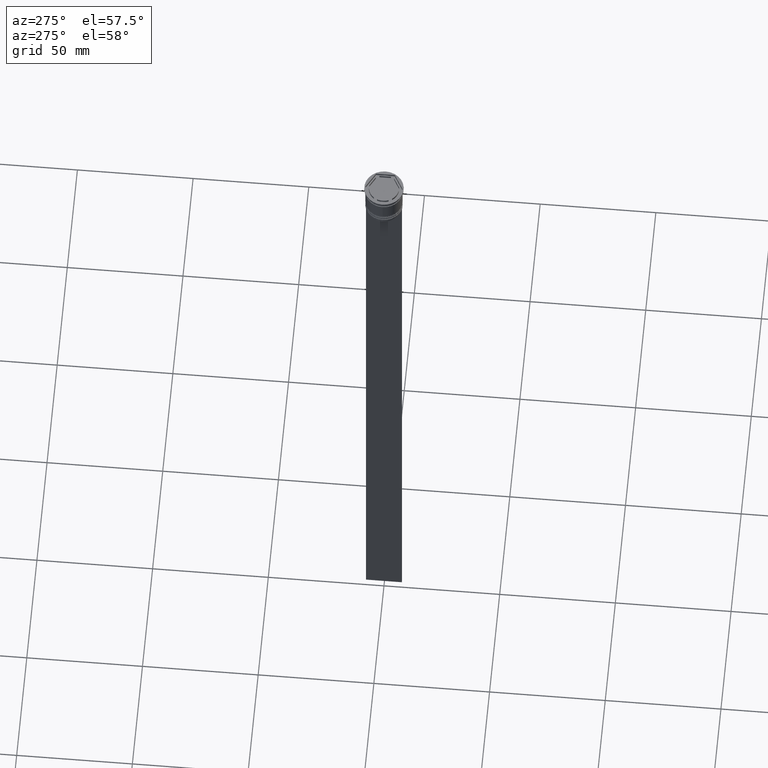
[diagram: clean part render]
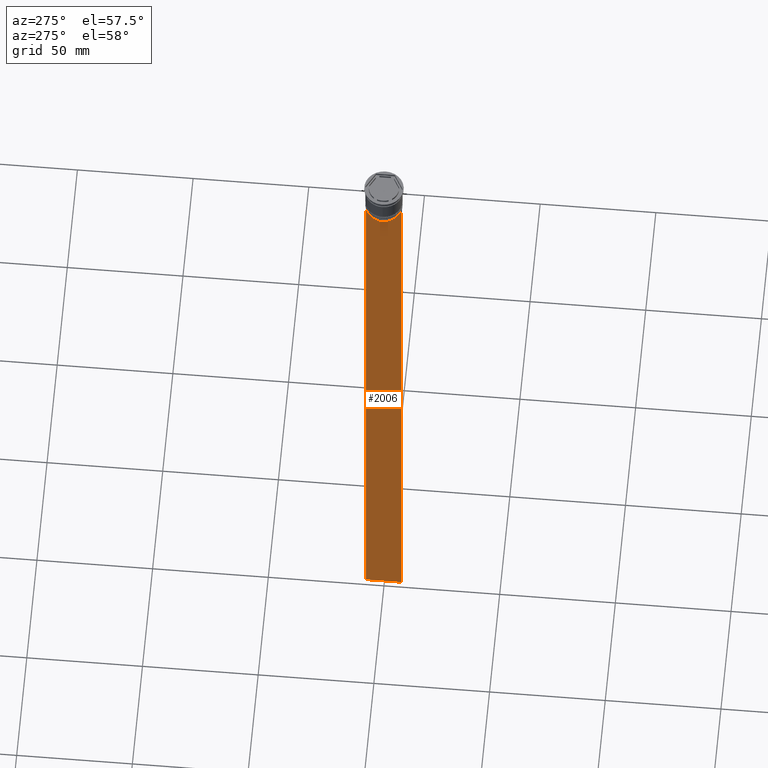
[diagram: same view with one face highlighted and labeled with its STEP entity id]
A machine part, auxiliary view. The second image highlights one B-rep face of the part: STEP entity #2006.
In plain terms, the highlighted planar face has unit normal (-1, 0, 0).
Its self-contained STEP definition (entity closure, byte-faithful):
#19 = DIRECTION ( 'NONE',  ( 0.000000000000000000, -1.000000000000000000, 0.000000000000000000 ) ) ;
#57 = ORIENTED_EDGE ( 'NONE', *, *, #2250, .F. ) ;
#104 = CARTESIAN_POINT ( 'NONE',  ( -0.4999999999999998890, -6.380438856379708312, -14.50000000000000000 ) ) ;
#106 = EDGE_LOOP ( 'NONE', ( #157, #664, #1202, #624, #2163, #57, #1738, #1619, #1998, #1241 ) ) ;
#157 = ORIENTED_EDGE ( 'NONE', *, *, #1660, .F. ) ;
#202 = CARTESIAN_POINT ( 'NONE',  ( -0.4999999999999998890, 6.714736947114692711, -14.16668390704818847 ) ) ;
#258 = CARTESIAN_POINT ( 'NONE',  ( -0.4999999999999998890, -7.749999999999999112, -14.00000000000000178 ) ) ;
#261 = CARTESIAN_POINT ( 'NONE',  ( -0.4999999999999998890, 6.380438856379708312, 0.000000000000000000 ) ) ;
#279 = CARTESIAN_POINT ( 'NONE',  ( -0.4999999999999998890, -6.714736947305992132, -14.16668390685738999 ) ) ;
#328 = CARTESIAN_POINT ( 'NONE',  ( -0.4999999999999998890, 7.750000000000002665, 1.532224567009066840 ) ) ;
#348 = VERTEX_POINT ( 'NONE', #2304 ) ;
#457 = CARTESIAN_POINT ( 'NONE',  ( -0.4999999999999998890, -6.547597841511246131, -14.33335192438652328 ) ) ;
#520 = EDGE_CURVE ( 'NONE', #932, #1567, #1921, .T. ) ;
#570 = VECTOR ( 'NONE', #1936, 1000.000000000000000 ) ;
#600 = EDGE_CURVE ( 'NONE', #1169, #1170, #1060, .T. ) ;
#622 = CARTESIAN_POINT ( 'NONE',  ( -0.4999999999999998890, 6.380438856379708312, -14.50000000000000000 ) ) ;
#624 = ORIENTED_EDGE ( 'NONE', *, *, #600, .F. ) ;
#651 = CARTESIAN_POINT ( 'NONE',  ( -0.4999999999999998890, -7.749999999999999112, -14.00000000000000178 ) ) ;
#654 = DIRECTION ( 'NONE',  ( 0.000000000000000000, 0.000000000000000000, -1.000000000000000000 ) ) ;
#664 = ORIENTED_EDGE ( 'NONE', *, *, #1783, .F. ) ;
#724 = CARTESIAN_POINT ( 'NONE',  ( -0.4999999999999998890, -6.380438856379708312, -17.00000000000000000 ) ) ;
#745 = DIRECTION ( 'NONE',  ( -0.000000000000000000, -0.000000000000000000, 1.000000000000000000 ) ) ;
#763 = VECTOR ( 'NONE', #862, 1000.000000000000000 ) ;
#820 = CARTESIAN_POINT ( 'NONE',  ( -0.4999999999999998890, -6.881860213634098500, -14.00000000000000178 ) ) ;
#862 = DIRECTION ( 'NONE',  ( 0.000000000000000000, 1.000000000000000000, 0.000000000000000000 ) ) ;
#879 = VERTEX_POINT ( 'NONE', #2333 ) ;
#932 = VERTEX_POINT ( 'NONE', #622 ) ;
#988 = DIRECTION ( 'NONE',  ( 0.000000000000000000, 0.000000000000000000, 1.000000000000000000 ) ) ;
#999 = DIRECTION ( 'NONE',  ( 0.000000000000000000, 0.000000000000000000, -1.000000000000000000 ) ) ;
#1060 = LINE ( 'NONE', #1966, #763 ) ;
#1096 = FACE_OUTER_BOUND ( 'NONE', #106, .T. ) ;
#1102 = B_SPLINE_CURVE_WITH_KNOTS ( 'NONE', 3,
 ( #2234, #202, #1131, #1691 ),
 .UNSPECIFIED., .F., .F.,
 ( 4, 4 ),
 ( 0.01172465562756038263, 0.01243276816391822651 ),
 .UNSPECIFIED. ) ;
#1107 = CARTESIAN_POINT ( 'NONE',  ( -0.4999999999999998890, 6.380438856379708312, -17.00000000000000000 ) ) ;
#1131 = CARTESIAN_POINT ( 'NONE',  ( -0.4999999999999998890, 6.547597841304911626, -14.33335192459222718 ) ) ;
#1133 = DIRECTION ( 'NONE',  ( -1.000000000000000000, 0.000000000000000000, 0.000000000000000000 ) ) ;
#1169 = VERTEX_POINT ( 'NONE', #1553 ) ;
#1170 = VERTEX_POINT ( 'NONE', #2292 ) ;
#1173 = CARTESIAN_POINT ( 'NONE',  ( -0.4999999999999998890, -7.749999999999999112, -14.00000000000000178 ) ) ;
#1202 = ORIENTED_EDGE ( 'NONE', *, *, #1444, .T. ) ;
#1205 = VERTEX_POINT ( 'NONE', #1173 ) ;
#1209 = LINE ( 'NONE', #258, #1569 ) ;
#1211 = DIRECTION ( 'NONE',  ( 0.000000000000000000, 0.000000000000000000, -1.000000000000000000 ) ) ;
#1221 = EDGE_CURVE ( 'NONE', #1205, #1169, #2096, .T. ) ;
#1241 = ORIENTED_EDGE ( 'NONE', *, *, #520, .F. ) ;
#1272 = LINE ( 'NONE', #2370, #2155 ) ;
#1286 = VECTOR ( 'NONE', #654, 1000.000000000000000 ) ;
#1346 = LINE ( 'NONE', #1863, #2358 ) ;
#1397 = EDGE_CURVE ( 'NONE', #1445, #2252, #1851, .T. ) ;
#1444 = EDGE_CURVE ( 'NONE', #879, #1170, #2334, .T. ) ;
#1445 = VERTEX_POINT ( 'NONE', #2301 ) ;
#1524 = AXIS2_PLACEMENT_3D ( 'NONE', #1716, #1133, #988 ) ;
#1553 = CARTESIAN_POINT ( 'NONE',  ( -0.4999999999999998890, -7.749999999999999112, -314.0000000000000000 ) ) ;
#1567 = VERTEX_POINT ( 'NONE', #1107 ) ;
#1569 = VECTOR ( 'NONE', #1775, 1000.000000000000000 ) ;
#1619 = ORIENTED_EDGE ( 'NONE', *, *, #1871, .F. ) ;
#1660 = EDGE_CURVE ( 'NONE', #348, #932, #1102, .T. ) ;
#1691 = CARTESIAN_POINT ( 'NONE',  ( -0.4999999999999998890, 6.380438856379708312, -14.50000000000000000 ) ) ;
#1716 = CARTESIAN_POINT ( 'NONE',  ( -0.4999999999999998890, -7.749999999999999112, 1.532224567009066840 ) ) ;
#1737 = VECTOR ( 'NONE', #1211, 1000.000000000000000 ) ;
#1738 = ORIENTED_EDGE ( 'NONE', *, *, #1397, .F. ) ;
#1775 = DIRECTION ( 'NONE',  ( 0.000000000000000000, -1.000000000000000000, 0.000000000000000000 ) ) ;
#1779 = CARTESIAN_POINT ( 'NONE',  ( -0.4999999999999998890, -6.881860213634098500, -14.00000000000000178 ) ) ;
#1783 = EDGE_CURVE ( 'NONE', #879, #348, #1209, .T. ) ;
#1835 = PLANE ( 'NONE',  #1524 ) ;
#1851 = B_SPLINE_CURVE_WITH_KNOTS ( 'NONE', 3,
 ( #104, #457, #279, #1779 ),
 .UNSPECIFIED., .F., .F.,
 ( 4, 4 ),
 ( 0.02996184199614749730, 0.03067452609193703841 ),
 .UNSPECIFIED. ) ;
#1863 = CARTESIAN_POINT ( 'NONE',  ( -0.4999999999999998890, 6.399999999999999467, -17.00000000000000000 ) ) ;
#1871 = EDGE_CURVE ( 'NONE', #2337, #1445, #1272, .T. ) ;
#1915 = CARTESIAN_POINT ( 'NONE',  ( -0.4999999999999998890, -7.749999999999999112, 1.532224567009066840 ) ) ;
#1921 = LINE ( 'NONE', #261, #1737 ) ;
#1936 = DIRECTION ( 'NONE',  ( 0.000000000000000000, -1.000000000000000000, 0.000000000000000000 ) ) ;
#1945 = VECTOR ( 'NONE', #999, 1000.000000000000000 ) ;
#1966 = CARTESIAN_POINT ( 'NONE',  ( -0.4999999999999998890, -7.749999999999999112, -314.0000000000000000 ) ) ;
#1998 = ORIENTED_EDGE ( 'NONE', *, *, #2058, .F. ) ;
#2006 = ADVANCED_FACE ( 'NONE', ( #1096 ), #1835, .T. ) ;
#2058 = EDGE_CURVE ( 'NONE', #1567, #2337, #1346, .T. ) ;
#2096 = LINE ( 'NONE', #1915, #1945 ) ;
#2155 = VECTOR ( 'NONE', #745, 1000.000000000000000 ) ;
#2163 = ORIENTED_EDGE ( 'NONE', *, *, #1221, .F. ) ;
#2234 = CARTESIAN_POINT ( 'NONE',  ( -0.4999999999999998890, 6.881860213634098500, -14.00000000000000178 ) ) ;
#2250 = EDGE_CURVE ( 'NONE', #2252, #1205, #2315, .T. ) ;
#2252 = VERTEX_POINT ( 'NONE', #820 ) ;
#2292 = CARTESIAN_POINT ( 'NONE',  ( -0.4999999999999998890, 7.750000000000002665, -314.0000000000000000 ) ) ;
#2301 = CARTESIAN_POINT ( 'NONE',  ( -0.4999999999999998890, -6.380438856379708312, -14.50000000000000000 ) ) ;
#2304 = CARTESIAN_POINT ( 'NONE',  ( -0.4999999999999998890, 6.881860213634098500, -14.00000000000000178 ) ) ;
#2315 = LINE ( 'NONE', #651, #570 ) ;
#2333 = CARTESIAN_POINT ( 'NONE',  ( -0.4999999999999998890, 7.750000000000002665, -14.00000000000000178 ) ) ;
#2334 = LINE ( 'NONE', #328, #1286 ) ;
#2337 = VERTEX_POINT ( 'NONE', #724 ) ;
#2358 = VECTOR ( 'NONE', #19, 1000.000000000000000 ) ;
#2370 = CARTESIAN_POINT ( 'NONE',  ( -0.4999999999999998890, -6.380438856379708312, 0.000000000000000000 ) ) ;